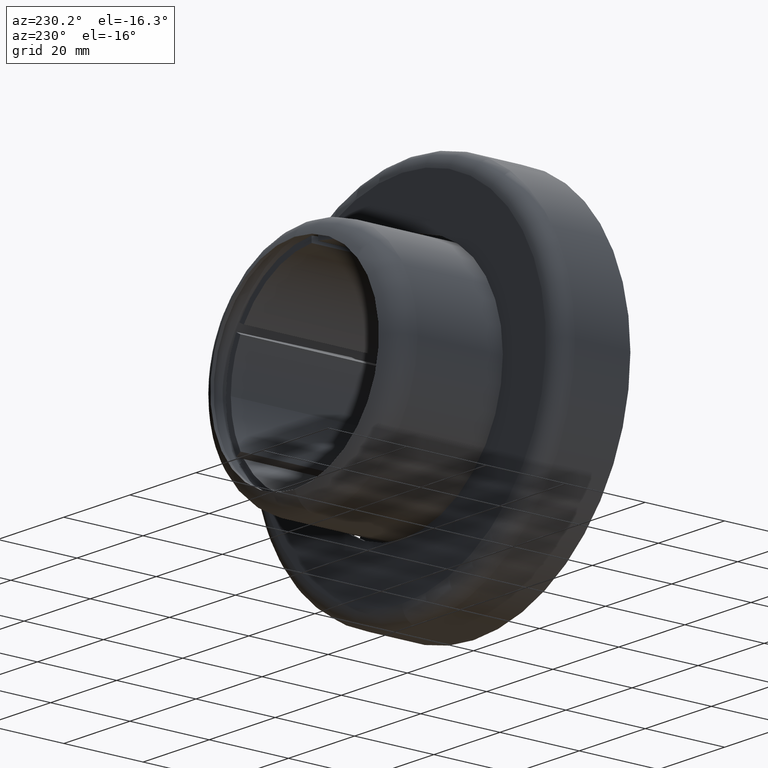
[diagram: clean part render]
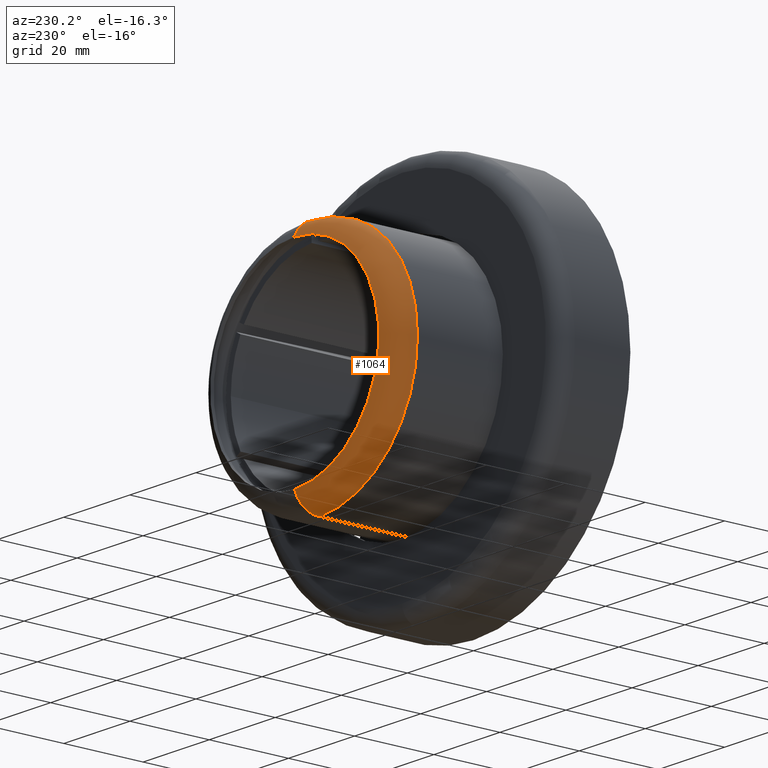
[diagram: same view with one face highlighted and labeled with its STEP entity id]
A machine part, auxiliary view. The second image highlights one B-rep face of the part: STEP entity #1064.
In plain terms, the highlighted toroidal blend (fillet) surface has major radius 23.35 mm and minor (blend) radius 6.5 mm.
Its self-contained STEP definition (entity closure, byte-faithful):
#86 = EDGE_LOOP ( 'NONE', ( #532, #3216, #2635, #3324 ) ) ;
#155 = DIRECTION ( 'NONE',  ( 1.000000000000000000, 0.0000000000000000000, -1.224646799147353200E-016 ) ) ;
#160 = EDGE_CURVE ( 'NONE', #3438, #820, #2182, .T. ) ;
#193 = DIRECTION ( 'NONE',  ( -1.000000000000000000, 0.0000000000000000000, 0.0000000000000000000 ) ) ;
#327 = DIRECTION ( 'NONE',  ( 0.0000000000000000000, 0.0000000000000000000, -1.000000000000000000 ) ) ;
#332 = EDGE_CURVE ( 'NONE', #1124, #380, #3007, .T. ) ;
#341 = CARTESIAN_POINT ( 'NONE',  ( 0.0000000000000000000, 41.63412585459411700, 0.0000000000000000000 ) ) ;
#369 = DIRECTION ( 'NONE',  ( -0.0000000000000000000, -1.000000000000000000, -0.0000000000000000000 ) ) ;
#380 = VERTEX_POINT ( 'NONE', #2965 ) ;
#411 = CARTESIAN_POINT ( 'NONE',  ( 2.859550276009069900E-015, 35.50000000000000700, 23.34999999999999800 ) ) ;
#489 = DIRECTION ( 'NONE',  ( 0.0000000000000000000, 0.0000000000000000000, -1.000000000000000000 ) ) ;
#532 = ORIENTED_EDGE ( 'NONE', *, *, #3159, .F. ) ;
#820 = VERTEX_POINT ( 'NONE', #2626 ) ;
#903 = DIRECTION ( 'NONE',  ( 0.0000000000000000000, 0.0000000000000000000, -1.000000000000000000 ) ) ;
#924 = CARTESIAN_POINT ( 'NONE',  ( 0.0000000000000000000, 35.50000000000000700, 0.0000000000000000000 ) ) ;
#1064 = ADVANCED_FACE ( 'NONE', ( #3445 ), #2294, .T. ) ;
#1124 = VERTEX_POINT ( 'NONE', #1733 ) ;
#1232 = AXIS2_PLACEMENT_3D ( 'NONE', #341, #2690, #327 ) ;
#1268 = EDGE_CURVE ( 'NONE', #1124, #820, #2625, .T. ) ;
#1656 = AXIS2_PLACEMENT_3D ( 'NONE', #1782, #193, #2043 ) ;
#1733 = CARTESIAN_POINT ( 'NONE',  ( 0.0000000000000000000, 41.63412585459411700, -25.50000000000000000 ) ) ;
#1782 = CARTESIAN_POINT ( 'NONE',  ( 0.0000000000000000000, 35.50000000000000700, -23.34999999999999800 ) ) ;
#2043 = DIRECTION ( 'NONE',  ( 0.0000000000000000000, 0.0000000000000000000, 1.000000000000000000 ) ) ;
#2182 = CIRCLE ( 'NONE', #2880, 29.84999999999999800 ) ;
#2266 = AXIS2_PLACEMENT_3D ( 'NONE', #411, #155, #2535 ) ;
#2294 = TOROIDAL_SURFACE ( 'NONE', #2508, 23.34999999999999800, 6.499999999999999100 ) ;
#2319 = DIRECTION ( 'NONE',  ( -0.0000000000000000000, -1.000000000000000000, -0.0000000000000000000 ) ) ;
#2508 = AXIS2_PLACEMENT_3D ( 'NONE', #924, #369, #903 ) ;
#2535 = DIRECTION ( 'NONE',  ( -1.224646799147353000E-016, 0.0000000000000000000, -1.000000000000000000 ) ) ;
#2586 = CARTESIAN_POINT ( 'NONE',  ( 0.0000000000000000000, 35.50000000000000700, 0.0000000000000000000 ) ) ;
#2625 = CIRCLE ( 'NONE', #1656, 6.499999999999999100 ) ;
#2626 = CARTESIAN_POINT ( 'NONE',  ( 0.0000000000000000000, 35.50000000000000700, -29.84999999999999800 ) ) ;
#2635 = ORIENTED_EDGE ( 'NONE', *, *, #1268, .T. ) ;
#2690 = DIRECTION ( 'NONE',  ( 0.0000000000000000000, 1.000000000000000000, 0.0000000000000000000 ) ) ;
#2718 = CIRCLE ( 'NONE', #2266, 6.499999999999999100 ) ;
#2736 = CARTESIAN_POINT ( 'NONE',  ( 3.655570695454848700E-015, 35.50000000000000700, 29.84999999999999800 ) ) ;
#2880 = AXIS2_PLACEMENT_3D ( 'NONE', #2586, #2319, #489 ) ;
#2965 = CARTESIAN_POINT ( 'NONE',  ( 3.389210016640299900E-015, 41.63412585459411700, 25.50000000000000000 ) ) ;
#3007 = CIRCLE ( 'NONE', #1232, 25.50000000000000000 ) ;
#3159 = EDGE_CURVE ( 'NONE', #380, #3438, #2718, .T. ) ;
#3216 = ORIENTED_EDGE ( 'NONE', *, *, #332, .F. ) ;
#3324 = ORIENTED_EDGE ( 'NONE', *, *, #160, .F. ) ;
#3438 = VERTEX_POINT ( 'NONE', #2736 ) ;
#3445 = FACE_OUTER_BOUND ( 'NONE', #86, .T. ) ;